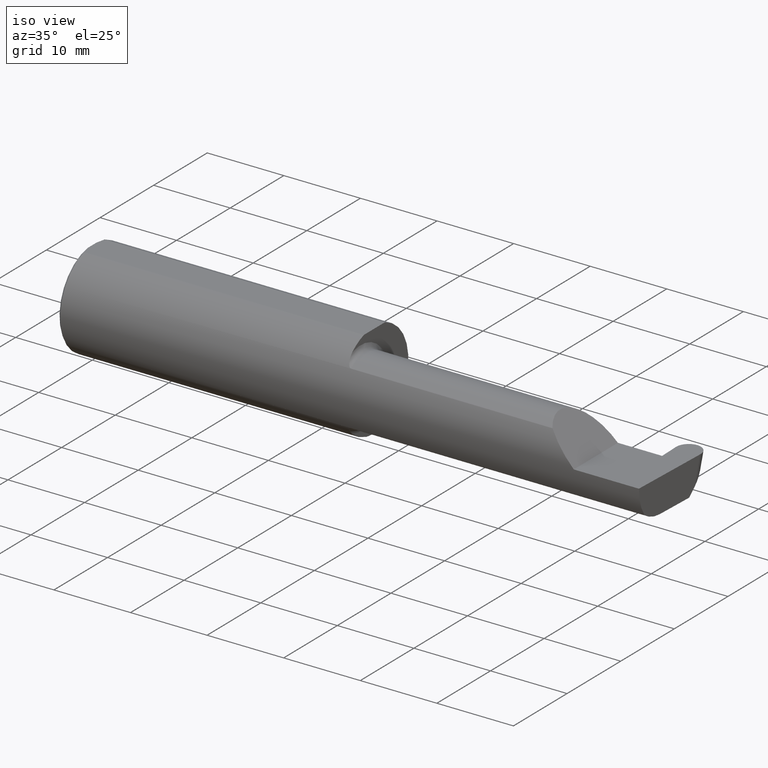
[diagram: clean part render]
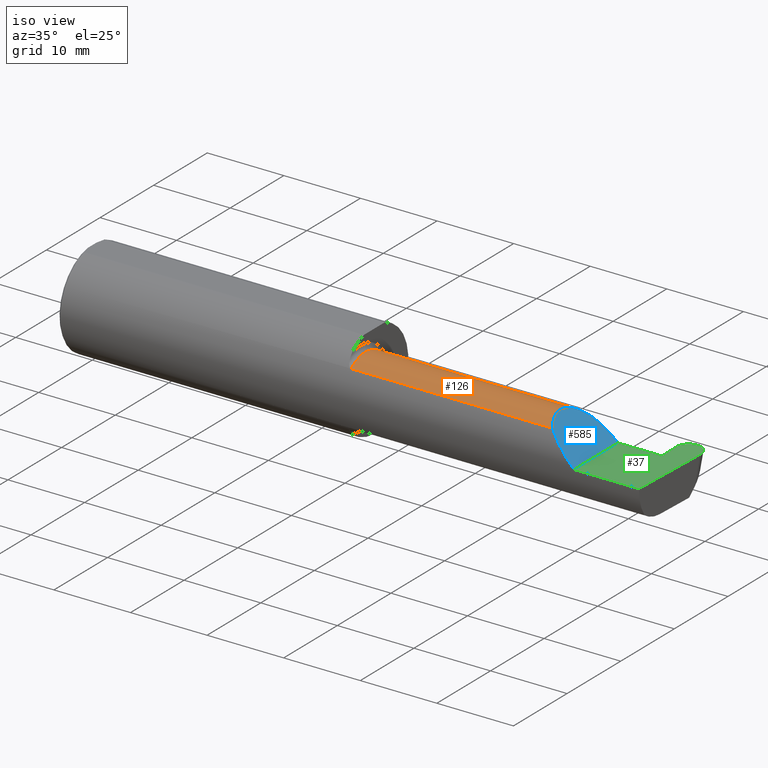
[diagram: same view with three faces highlighted in distinct colors, each labeled with its STEP entity id]
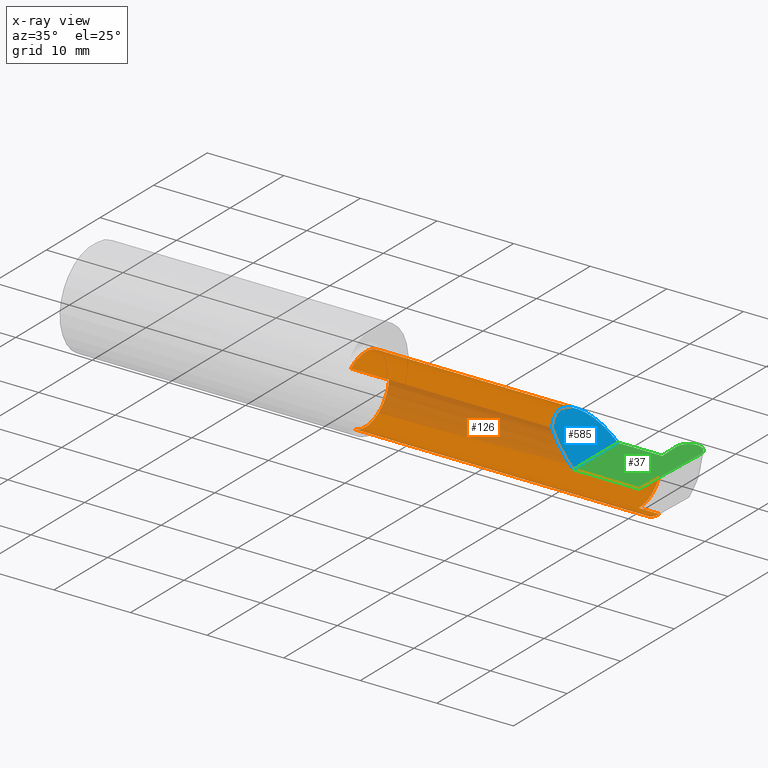
[diagram: x-ray of the same camera — body ghosted, the three highlighted faces saturated]
A machine part, iso view with three faces highlighted in distinct colors.
The next image is the same camera in x-ray (body ghosted, the three faces saturated) — at least one of them is partly hidden behind the body in this view.
Their STEP definitions:

[orange] entity #126 — the highlighted cylindrical surface (partial cylindrical patch) has radius 4.445 mm, axis along (-1, -0, -0).
#1 = CARTESIAN_POINT ( 'NONE',  ( 2.879499660824579976, 0.07056399972053264968, -0.1057442486376091589 ) ) ;
#7 = VERTEX_POINT ( 'NONE', #416 ) ;
#8 = CARTESIAN_POINT ( 'NONE',  ( 1.474999999999999867, -0.2080850024789289709, 0.1382955322609668580 ) ) ;
#10 = CARTESIAN_POINT ( 'NONE',  ( 2.409263745716142768, -0.07597241004310682777, 0.2407362542838554220 ) ) ;
#27 = LINE ( 'NONE', #287, #313 ) ;
#28 = DIRECTION ( 'NONE',  ( -1.000000000000000000, -5.995991820921354631E-17, -0.000000000000000000 ) ) ;
#48 = CARTESIAN_POINT ( 'NONE',  ( 2.880805159919763270, -0.1008500000000000368, -0.1750000000000000444 ) ) ;
#52 = CARTESIAN_POINT ( 'NONE',  ( 3.402190948718818664, -0.1008499999999999674, -0.1750000000000000722 ) ) ;
#55 = VECTOR ( 'NONE', #495, 39.37007874015748143 ) ;
#62 = DIRECTION ( 'NONE',  ( 0.000000000000000000, -1.000000000000000000, 0.000000000000000000 ) ) ;
#88 = CARTESIAN_POINT ( 'NONE',  ( 2.174394315000000244, -0.2080850024789289432, -0.1382955322609668858 ) ) ;
#106 = VERTEX_POINT ( 'NONE', #221 ) ;
#116 = EDGE_CURVE ( 'NONE', #106, #424, #228, .T. ) ;
#119 = CARTESIAN_POINT ( 'NONE',  ( 2.511704467739032332, -0.2080850024789289432, 0.1382955322609668858 ) ) ;
#122 = DIRECTION ( 'NONE',  ( -1.000000000000000000, -0.000000000000000000, -0.000000000000000000 ) ) ;
#126 = ADVANCED_FACE ( 'NONE', ( #165 ), #264, .T. ) ;
#128 =( BOUNDED_CURVE ( )  B_SPLINE_CURVE ( 3, ( #48, #370, #1, #480 ),
 .UNSPECIFIED., .F., .T. ) 
 B_SPLINE_CURVE_WITH_KNOTS ( ( 4, 4 ),
 ( 3.159045946109733105, 4.694935687864651541 ),
 .UNSPECIFIED. ) 
 CURVE ( )  GEOMETRIC_REPRESENTATION_ITEM ( )  RATIONAL_B_SPLINE_CURVE ( ( 1.000000000000000000, 0.8128932002257887035, 0.8128932002257887035, 1.000000000000000000 ) ) 
 REPRESENTATION_ITEM ( '' )  );
#129 = AXIS2_PLACEMENT_3D ( 'NONE', #549, #442, #62 ) ;
#134 = VERTEX_POINT ( 'NONE', #438 ) ;
#139 = EDGE_CURVE ( 'NONE', #396, #106, #611, .T. ) ;
#140 = CARTESIAN_POINT ( 'NONE',  ( 2.984591634083985756, -0.1771157075472506726, -0.1623092683844332140 ) ) ;
#165 = FACE_OUTER_BOUND ( 'NONE', #440, .T. ) ;
#172 = DIRECTION ( 'NONE',  ( 0.000000000000000000, -1.000000000000000000, 0.000000000000000000 ) ) ;
#174 = AXIS2_PLACEMENT_3D ( 'NONE', #647, #481, #172 ) ;
#181 = VERTEX_POINT ( 'NONE', #427 ) ;
#183 = EDGE_CURVE ( 'NONE', #588, #429, #247, .T. ) ;
#189 = VECTOR ( 'NONE', #689, 39.37007874015748143 ) ;
#192 = LINE ( 'NONE', #624, #530 ) ;
#221 = CARTESIAN_POINT ( 'NONE',  ( 2.650000000000000355, 0.07414999999999997982, 1.898202538678394994E-16 ) ) ;
#228 = LINE ( 'NONE', #276, #55 ) ;
#231 = ORIENTED_EDGE ( 'NONE', *, *, #682, .T. ) ;
#244 = CARTESIAN_POINT ( 'NONE',  ( 2.866439859938323398, 0.07404339472834126079, -0.006107411922953013585 ) ) ;
#247 = CIRCLE ( 'NONE', #129, 0.1750000000000000167 ) ;
#254 = LINE ( 'NONE', #88, #189 ) ;
#264 = CYLINDRICAL_SURFACE ( 'NONE', #174, 0.1750000000000000444 ) ;
#271 = EDGE_CURVE ( 'NONE', #7, #331, #192, .T. ) ;
#276 = CARTESIAN_POINT ( 'NONE',  ( 1.450000000000000178, 0.07414999999999991043, 1.898202538678394994E-16 ) ) ;
#284 = ORIENTED_EDGE ( 'NONE', *, *, #139, .T. ) ;
#287 = CARTESIAN_POINT ( 'NONE',  ( 2.174394315000000244, -0.2080850024789289432, 0.1382955322609668858 ) ) ;
#296 = CARTESIAN_POINT ( 'NONE',  ( 2.985664738015655129, -0.1400387324517229082, -0.1750000000000000999 ) ) ;
#299 = CARTESIAN_POINT ( 'NONE',  ( 2.866439859938323398, 0.07404339472834126079, -0.006107411922953013585 ) ) ;
#313 = VECTOR ( 'NONE', #403, 39.37007874015748143 ) ;
#323 = ORIENTED_EDGE ( 'NONE', *, *, #497, .T. ) ;
#331 = VERTEX_POINT ( 'NONE', #244 ) ;
#346 = EDGE_CURVE ( 'NONE', #181, #134, #592, .T. ) ;
#352 = CARTESIAN_POINT ( 'NONE',  ( 2.987033238708274752, -0.1008499999999999674, -0.1750000000000000722 ) ) ;
#358 = ORIENTED_EDGE ( 'NONE', *, *, #116, .T. ) ;
#370 = CARTESIAN_POINT ( 'NONE',  ( 2.880773714454435197, -0.001152430219572236555, -0.1750000000000000722 ) ) ;
#392 = ORIENTED_EDGE ( 'NONE', *, *, #565, .F. ) ;
#396 = VERTEX_POINT ( 'NONE', #617 ) ;
#403 = DIRECTION ( 'NONE',  ( 1.000000000000000000, 5.995991820921354631E-17, 0.000000000000000000 ) ) ;
#416 = CARTESIAN_POINT ( 'NONE',  ( 2.877698151322465314, 0.07404339472834124691, -0.006107411922953761250 ) ) ;
#424 = VERTEX_POINT ( 'NONE', #477 ) ;
#427 = CARTESIAN_POINT ( 'NONE',  ( 2.983929579294953616, -0.2080850024789288599, -0.1382955322609668858 ) ) ;
#429 = VERTEX_POINT ( 'NONE', #574 ) ;
#436 = ORIENTED_EDGE ( 'NONE', *, *, #183, .F. ) ;
#438 = CARTESIAN_POINT ( 'NONE',  ( 2.987033238708274752, -0.1008499999999999674, -0.1750000000000000722 ) ) ;
#440 = EDGE_LOOP ( 'NONE', ( #323, #436, #231, #284, #358, #700, #648, #392, #665, #710 ) ) ;
#442 = DIRECTION ( 'NONE',  ( -1.000000000000000000, -5.995991820921354631E-17, -0.000000000000000000 ) ) ;
#447 = CARTESIAN_POINT ( 'NONE',  ( 2.983929579294953616, -0.2080850024789288599, -0.1382955322609668858 ) ) ;
#457 = EDGE_CURVE ( 'NONE', #331, #424, #593, .T. ) ;
#465 = CARTESIAN_POINT ( 'NONE',  ( 2.866475395028876161, 0.07407892981889409312, -0.004071607948635345281 ) ) ;
#477 = CARTESIAN_POINT ( 'NONE',  ( 2.866546465209982131, 0.07414999999999977165, 0.000000000000000000 ) ) ;
#480 = CARTESIAN_POINT ( 'NONE',  ( 2.877698151322465314, 0.07404339472834124691, -0.006107411922953761250 ) ) ;
#481 = DIRECTION ( 'NONE',  ( -1.000000000000000000, -5.995991820921354631E-17, -0.000000000000000000 ) ) ;
#492 = CARTESIAN_POINT ( 'NONE',  ( 2.650000000000000355, 0.07414999999999997982, 1.898202538678394994E-16 ) ) ;
#495 = DIRECTION ( 'NONE',  ( 1.000000000000000000, 5.995991820921354631E-17, 0.000000000000000000 ) ) ;
#497 = EDGE_CURVE ( 'NONE', #181, #429, #254, .T. ) ;
#506 = CARTESIAN_POINT ( 'NONE',  ( 2.880805159919763270, -0.1008500000000000368, -0.1750000000000000444 ) ) ;
#514 = CARTESIAN_POINT ( 'NONE',  ( 2.866546465209982131, 0.07414999999999977165, 0.000000000000000000 ) ) ;
#530 = VECTOR ( 'NONE', #28, 39.37007874015748143 ) ;
#539 = LINE ( 'NONE', #52, #672 ) ;
#549 = CARTESIAN_POINT ( 'NONE',  ( 1.474999999999999867, -0.1008500000000001062, 0.000000000000000000 ) ) ;
#565 = EDGE_CURVE ( 'NONE', #696, #7, #128, .T. ) ;
#574 = CARTESIAN_POINT ( 'NONE',  ( 1.474999999999999867, -0.2080850024789289987, -0.1382955322609668025 ) ) ;
#581 = CARTESIAN_POINT ( 'NONE',  ( 2.866510930119428924, 0.07411446490944693932, -0.002035803974317672640 ) ) ;
#588 = VERTEX_POINT ( 'NONE', #8 ) ;
#592 =( BOUNDED_CURVE ( )  B_SPLINE_CURVE ( 3, ( #447, #140, #296, #352 ),
 .UNSPECIFIED., .F., .T. ) 
 B_SPLINE_CURVE_WITH_KNOTS ( ( 4, 4 ),
 ( 0.4474640105399665946, 1.107026853503871866 ),
 .UNSPECIFIED. ) 
 CURVE ( )  GEOMETRIC_REPRESENTATION_ITEM ( )  RATIONAL_B_SPLINE_CURVE ( ( 1.000000000000000000, 0.9640754331822831702, 0.9640754331822831702, 1.000000000000000000 ) ) 
 REPRESENTATION_ITEM ( '' )  );
#593 = B_SPLINE_CURVE_WITH_KNOTS ( 'NONE', 3,
 ( #299, #465, #581, #514 ),
 .UNSPECIFIED., .F., .F.,
 ( 4, 4 ),
 ( 0.000000000000000000, 1.000000000000000000 ),
 .UNSPECIFIED. ) ;
#597 = CARTESIAN_POINT ( 'NONE',  ( 2.482823929317965028, 0.07414999999999997982, 0.1671760706820338838 ) ) ;
#611 =( BOUNDED_CURVE ( )  B_SPLINE_CURVE ( 3, ( #119, #10, #597, #492 ),
 .UNSPECIFIED., .F., .F. ) 
 B_SPLINE_CURVE_WITH_KNOTS ( ( 4, 4 ),
 ( 5.623622464215681127, 7.853981633974482790 ),
 .UNSPECIFIED. ) 
 CURVE ( )  GEOMETRIC_REPRESENTATION_ITEM ( )  RATIONAL_B_SPLINE_CURVE ( ( 1.000000000000000000, 0.6266774836123996106, 0.6266774836123996106, 1.000000000000000000 ) ) 
 REPRESENTATION_ITEM ( '' )  );
#617 = CARTESIAN_POINT ( 'NONE',  ( 2.511704467739032332, -0.2080850024789289432, 0.1382955322609668858 ) ) ;
#624 = CARTESIAN_POINT ( 'NONE',  ( 1.450000000000000178, 0.07404339472834139957, -0.006107411922946026986 ) ) ;
#635 = EDGE_CURVE ( 'NONE', #134, #696, #539, .T. ) ;
#647 = CARTESIAN_POINT ( 'NONE',  ( 1.450000000000000178, -0.1008500000000001062, 0.000000000000000000 ) ) ;
#648 = ORIENTED_EDGE ( 'NONE', *, *, #271, .F. ) ;
#665 = ORIENTED_EDGE ( 'NONE', *, *, #635, .F. ) ;
#672 = VECTOR ( 'NONE', #122, 39.37007874015748143 ) ;
#682 = EDGE_CURVE ( 'NONE', #588, #396, #27, .T. ) ;
#689 = DIRECTION ( 'NONE',  ( -1.000000000000000000, -5.995991820921354631E-17, -0.000000000000000000 ) ) ;
#696 = VERTEX_POINT ( 'NONE', #506 ) ;
#700 = ORIENTED_EDGE ( 'NONE', *, *, #457, .F. ) ;
#710 = ORIENTED_EDGE ( 'NONE', *, *, #346, .F. ) ;

[blue] entity #585 — the highlighted planar face has unit normal (-0.7071, 0, -0.7071).
#10 = CARTESIAN_POINT ( 'NONE',  ( 2.409263745716142768, -0.07597241004310682777, 0.2407362542838554220 ) ) ;
#26 =( BOUNDED_CURVE ( )  B_SPLINE_CURVE ( 3, ( #378, #272, #57, #433 ),
 .UNSPECIFIED., .F., .F. ) 
 B_SPLINE_CURVE_WITH_KNOTS ( ( 4, 4 ),
 ( 4.712388980384689674, 5.298966915116347209 ),
 .UNSPECIFIED. ) 
 CURVE ( )  GEOMETRIC_REPRESENTATION_ITEM ( )  RATIONAL_B_SPLINE_CURVE ( ( 1.000000000000000000, 0.9715321379117538569, 0.9715321379117538569, 1.000000000000000000 ) ) 
 REPRESENTATION_ITEM ( '' )  );
#44 = EDGE_LOOP ( 'NONE', ( #226, #561, #417 ) ) ;
#57 = CARTESIAN_POINT ( 'NONE',  ( 2.552984868485332015, -0.2355204011147991883, 0.09701513151466749363 ) ) ;
#69 = VECTOR ( 'NONE', #142, 39.37007874015748143 ) ;
#75 = VERTEX_POINT ( 'NONE', #525 ) ;
#106 = VERTEX_POINT ( 'NONE', #221 ) ;
#119 = CARTESIAN_POINT ( 'NONE',  ( 2.511704467739032332, -0.2080850024789289432, 0.1382955322609668858 ) ) ;
#139 = EDGE_CURVE ( 'NONE', #396, #106, #611, .T. ) ;
#142 = DIRECTION ( 'NONE',  ( -0.000000000000000000, 1.000000000000000000, -0.000000000000000000 ) ) ;
#160 = PLANE ( 'NONE',  #249 ) ;
#171 = DIRECTION ( 'NONE',  ( -0.7071067811865439090, 0.000000000000000000, -0.7071067811865511255 ) ) ;
#201 = LINE ( 'NONE', #260, #69 ) ;
#221 = CARTESIAN_POINT ( 'NONE',  ( 2.650000000000000355, 0.07414999999999997982, 1.898202538678394994E-16 ) ) ;
#226 = ORIENTED_EDGE ( 'NONE', *, *, #139, .F. ) ;
#249 = AXIS2_PLACEMENT_3D ( 'NONE', #708, #171, #494 ) ;
#260 = CARTESIAN_POINT ( 'NONE',  ( 2.650000000000000355, -0.2500000000000000555, 4.286263797015729199E-17 ) ) ;
#272 = CARTESIAN_POINT ( 'NONE',  ( 2.600434159100402987, -0.2498499999999999610, 0.04956584089959698708 ) ) ;
#320 = FACE_OUTER_BOUND ( 'NONE', #44, .T. ) ;
#378 = CARTESIAN_POINT ( 'NONE',  ( 2.650000000000000355, -0.2498499999999999610, 4.286263797015729199E-17 ) ) ;
#396 = VERTEX_POINT ( 'NONE', #617 ) ;
#417 = ORIENTED_EDGE ( 'NONE', *, *, #435, .T. ) ;
#433 = CARTESIAN_POINT ( 'NONE',  ( 2.511704467739032332, -0.2080850024789289432, 0.1382955322609668858 ) ) ;
#435 = EDGE_CURVE ( 'NONE', #75, #106, #201, .T. ) ;
#492 = CARTESIAN_POINT ( 'NONE',  ( 2.650000000000000355, 0.07414999999999997982, 1.898202538678394994E-16 ) ) ;
#494 = DIRECTION ( 'NONE',  ( -0.7071067811865511255, 0.000000000000000000, 0.7071067811865439090 ) ) ;
#525 = CARTESIAN_POINT ( 'NONE',  ( 2.650000000000000355, -0.2498499999999999610, 4.286263797015729199E-17 ) ) ;
#547 = EDGE_CURVE ( 'NONE', #75, #396, #26, .T. ) ;
#561 = ORIENTED_EDGE ( 'NONE', *, *, #547, .F. ) ;
#585 = ADVANCED_FACE ( 'NONE', ( #320 ), #160, .F. ) ;
#597 = CARTESIAN_POINT ( 'NONE',  ( 2.482823929317965028, 0.07414999999999997982, 0.1671760706820338838 ) ) ;
#611 =( BOUNDED_CURVE ( )  B_SPLINE_CURVE ( 3, ( #119, #10, #597, #492 ),
 .UNSPECIFIED., .F., .F. ) 
 B_SPLINE_CURVE_WITH_KNOTS ( ( 4, 4 ),
 ( 5.623622464215681127, 7.853981633974482790 ),
 .UNSPECIFIED. ) 
 CURVE ( )  GEOMETRIC_REPRESENTATION_ITEM ( )  RATIONAL_B_SPLINE_CURVE ( ( 1.000000000000000000, 0.6266774836123996106, 0.6266774836123996106, 1.000000000000000000 ) ) 
 REPRESENTATION_ITEM ( '' )  );
#617 = CARTESIAN_POINT ( 'NONE',  ( 2.511704467739032332, -0.2080850024789289432, 0.1382955322609668858 ) ) ;
#708 = CARTESIAN_POINT ( 'NONE',  ( 2.650000000000000355, -0.2500000000000000555, 4.286263797015729199E-17 ) ) ;

[green] entity #37 — the highlighted planar face has unit normal (-0, 0, -1).
#37 = ADVANCED_FACE ( 'NONE', ( #420 ), #362, .F. ) ;
#41 = LINE ( 'NONE', #686, #281 ) ;
#46 = CARTESIAN_POINT ( 'NONE',  ( 2.872525856337140748, 0.2191039076196377999, 1.588360126375408623E-17 ) ) ;
#55 = VECTOR ( 'NONE', #495, 39.37007874015748143 ) ;
#69 = VECTOR ( 'NONE', #142, 39.37007874015748143 ) ;
#70 = CARTESIAN_POINT ( 'NONE',  ( 2.999898068948996244, 0.1800238777770215015, 0.000000000000000000 ) ) ;
#75 = VERTEX_POINT ( 'NONE', #525 ) ;
#78 = CARTESIAN_POINT ( 'NONE',  ( 2.873827072278243744, 0.1818419583544338691, 0.000000000000000000 ) ) ;
#83 = EDGE_CURVE ( 'NONE', #274, #369, #513, .T. ) ;
#106 = VERTEX_POINT ( 'NONE', #221 ) ;
#116 = EDGE_CURVE ( 'NONE', #106, #424, #228, .T. ) ;
#123 = LINE ( 'NONE', #230, #705 ) ;
#141 = VECTOR ( 'NONE', #285, 39.37007874015748143 ) ;
#142 = DIRECTION ( 'NONE',  ( -0.000000000000000000, 1.000000000000000000, -0.000000000000000000 ) ) ;
#143 = ORIENTED_EDGE ( 'NONE', *, *, #470, .F. ) ;
#166 = VERTEX_POINT ( 'NONE', #375 ) ;
#170 = ORIENTED_EDGE ( 'NONE', *, *, #116, .F. ) ;
#177 = DIRECTION ( 'NONE',  ( 1.000000000000000000, -0.000000000000000000, -0.000000000000000000 ) ) ;
#187 = AXIS2_PLACEMENT_3D ( 'NONE', #639, #683, #628 ) ;
#195 = CARTESIAN_POINT ( 'NONE',  ( 4.499279347985562423E-32, -0.2498499999999999610, 3.673940397442054938E-16 ) ) ;
#200 = EDGE_CURVE ( 'NONE', #209, #369, #123, .T. ) ;
#201 = LINE ( 'NONE', #260, #69 ) ;
#209 = VERTEX_POINT ( 'NONE', #333 ) ;
#217 = CARTESIAN_POINT ( 'NONE',  ( 2.873890561051005044, 0.1800238777770215848, 0.000000000000000000 ) ) ;
#218 = ORIENTED_EDGE ( 'NONE', *, *, #83, .T. ) ;
#221 = CARTESIAN_POINT ( 'NONE',  ( 2.650000000000000355, 0.07414999999999997982, 1.898202538678394994E-16 ) ) ;
#228 = LINE ( 'NONE', #276, #55 ) ;
#230 = CARTESIAN_POINT ( 'NONE',  ( -0.002039370078740339320, 0.2471499999999999808, 0.000000000000000000 ) ) ;
#259 = VERTEX_POINT ( 'NONE', #567 ) ;
#260 = CARTESIAN_POINT ( 'NONE',  ( 2.650000000000000355, -0.2500000000000000555, 4.286263797015729199E-17 ) ) ;
#261 = CARTESIAN_POINT ( 'NONE',  ( 2.999898068948996244, 0.1800238777770215015, 0.000000000000000000 ) ) ;
#266 = EDGE_CURVE ( 'NONE', #259, #309, #675, .T. ) ;
#274 = VERTEX_POINT ( 'NONE', #70 ) ;
#276 = CARTESIAN_POINT ( 'NONE',  ( 1.450000000000000178, 0.07414999999999991043, 1.898202538678394994E-16 ) ) ;
#278 = CARTESIAN_POINT ( 'NONE',  ( 2.877587758332053269, 0.07414999999999977165, 0.000000000000000000 ) ) ;
#281 = VECTOR ( 'NONE', #626, 39.37007874015748143 ) ;
#285 = DIRECTION ( 'NONE',  ( -0.03489949670249371805, 0.9993908270190959842, -0.000000000000000000 ) ) ;
#302 = CARTESIAN_POINT ( 'NONE',  ( 2.936434725234540632, 0.2471499999999999808, 0.000000000000000000 ) ) ;
#309 = VERTEX_POINT ( 'NONE', #504 ) ;
#316 = ORIENTED_EDGE ( 'NONE', *, *, #435, .F. ) ;
#317 = EDGE_CURVE ( 'NONE', #166, #75, #337, .T. ) ;
#333 = CARTESIAN_POINT ( 'NONE',  ( 2.936434725234540632, 0.2471499999999999808, 0.000000000000000000 ) ) ;
#337 = LINE ( 'NONE', #195, #622 ) ;
#362 = PLANE ( 'NONE',  #187 ) ;
#369 = VERTEX_POINT ( 'NONE', #455 ) ;
#375 = CARTESIAN_POINT ( 'NONE',  ( 2.984886542352623628, -0.2498499999999999888, 0.000000000000000000 ) ) ;
#408 = CARTESIAN_POINT ( 'NONE',  ( 2.898657552142794636, 0.2471500000000000918, 1.268339150128550293E-17 ) ) ;
#420 = FACE_OUTER_BOUND ( 'NONE', #529, .T. ) ;
#424 = VERTEX_POINT ( 'NONE', #477 ) ;
#435 = EDGE_CURVE ( 'NONE', #75, #106, #201, .T. ) ;
#437 = DIRECTION ( 'NONE',  ( 1.000000000000000000, -0.000000000000000000, -0.000000000000000000 ) ) ;
#448 = ORIENTED_EDGE ( 'NONE', *, *, #576, .F. ) ;
#452 = ORIENTED_EDGE ( 'NONE', *, *, #317, .F. ) ;
#455 = CARTESIAN_POINT ( 'NONE',  ( 2.937353904765460211, 0.2471499999999999808, 0.000000000000000000 ) ) ;
#470 = EDGE_CURVE ( 'NONE', #274, #166, #41, .T. ) ;
#477 = CARTESIAN_POINT ( 'NONE',  ( 2.866546465209982131, 0.07414999999999977165, 0.000000000000000000 ) ) ;
#478 = CARTESIAN_POINT ( 'NONE',  ( 3.001262773662860095, 0.2191039076196378277, -7.880140344815818546E-18 ) ) ;
#490 = ORIENTED_EDGE ( 'NONE', *, *, #502, .T. ) ;
#495 = DIRECTION ( 'NONE',  ( 1.000000000000000000, 5.995991820921354631E-17, 0.000000000000000000 ) ) ;
#502 = EDGE_CURVE ( 'NONE', #209, #309, #681, .T. ) ;
#504 = CARTESIAN_POINT ( 'NONE',  ( 2.873890561051005044, 0.1800238777770215848, 0.000000000000000000 ) ) ;
#513 =( BOUNDED_CURVE ( )  B_SPLINE_CURVE ( 3, ( #261, #478, #582, #699 ),
 .UNSPECIFIED., .F., .T. ) 
 B_SPLINE_CURVE_WITH_KNOTS ( ( 4, 4 ),
 ( 1.637964922114650168, 3.237953570749840804 ),
 .UNSPECIFIED. ) 
 CURVE ( )  GEOMETRIC_REPRESENTATION_ITEM ( )  RATIONAL_B_SPLINE_CURVE ( ( 1.000000000000000000, 0.7978071872141910825, 0.7978071872141910825, 1.000000000000000000 ) ) 
 REPRESENTATION_ITEM ( '' )  );
#525 = CARTESIAN_POINT ( 'NONE',  ( 2.650000000000000355, -0.2498499999999999610, 4.286263797015729199E-17 ) ) ;
#529 = EDGE_LOOP ( 'NONE', ( #541, #490, #568, #448, #170, #316, #452, #143, #218 ) ) ;
#541 = ORIENTED_EDGE ( 'NONE', *, *, #200, .F. ) ;
#555 = DIRECTION ( 'NONE',  ( -1.000000000000000000, -0.000000000000000000, -0.000000000000000000 ) ) ;
#567 = CARTESIAN_POINT ( 'NONE',  ( 2.877587758332053269, 0.07414999999999977165, 0.000000000000000000 ) ) ;
#568 = ORIENTED_EDGE ( 'NONE', *, *, #266, .F. ) ;
#576 = EDGE_CURVE ( 'NONE', #424, #259, #641, .T. ) ;
#577 = VECTOR ( 'NONE', #437, 39.37007874015748143 ) ;
#582 = CARTESIAN_POINT ( 'NONE',  ( 2.975131077857207096, 0.2471500000000000363, -4.679930582347232163E-18 ) ) ;
#622 = VECTOR ( 'NONE', #555, 39.37007874015748143 ) ;
#626 = DIRECTION ( 'NONE',  ( -0.03489949670249506419, -0.9993908270190959842, 0.000000000000000000 ) ) ;
#628 = DIRECTION ( 'NONE',  ( -1.000000000000000000, 0.000000000000000000, 1.224646799147351975E-16 ) ) ;
#639 = CARTESIAN_POINT ( 'NONE',  ( 3.000000000000000444, -0.2500000000000000555, 0.000000000000000000 ) ) ;
#641 = LINE ( 'NONE', #278, #577 ) ;
#675 = LINE ( 'NONE', #78, #141 ) ;
#681 =( BOUNDED_CURVE ( )  B_SPLINE_CURVE ( 3, ( #302, #408, #46, #217 ),
 .UNSPECIFIED., .F., .F. ) 
 B_SPLINE_CURVE_WITH_KNOTS ( ( 4, 4 ),
 ( 3.045231736429746316, 4.645220385064936508 ),
 .UNSPECIFIED. ) 
 CURVE ( )  GEOMETRIC_REPRESENTATION_ITEM ( )  RATIONAL_B_SPLINE_CURVE ( ( 1.000000000000000000, 0.7978071872141911935, 0.7978071872141911935, 1.000000000000000000 ) ) 
 REPRESENTATION_ITEM ( '' )  );
#683 = DIRECTION ( 'NONE',  ( -1.224646799147351975E-16, 0.000000000000000000, -1.000000000000000000 ) ) ;
#686 = CARTESIAN_POINT ( 'NONE',  ( 2.999961557721757099, 0.1818419583544338969, 0.000000000000000000 ) ) ;
#699 = CARTESIAN_POINT ( 'NONE',  ( 2.937353904765460211, 0.2471499999999999808, 0.000000000000000000 ) ) ;
#705 = VECTOR ( 'NONE', #177, 39.37007874015748143 ) ;